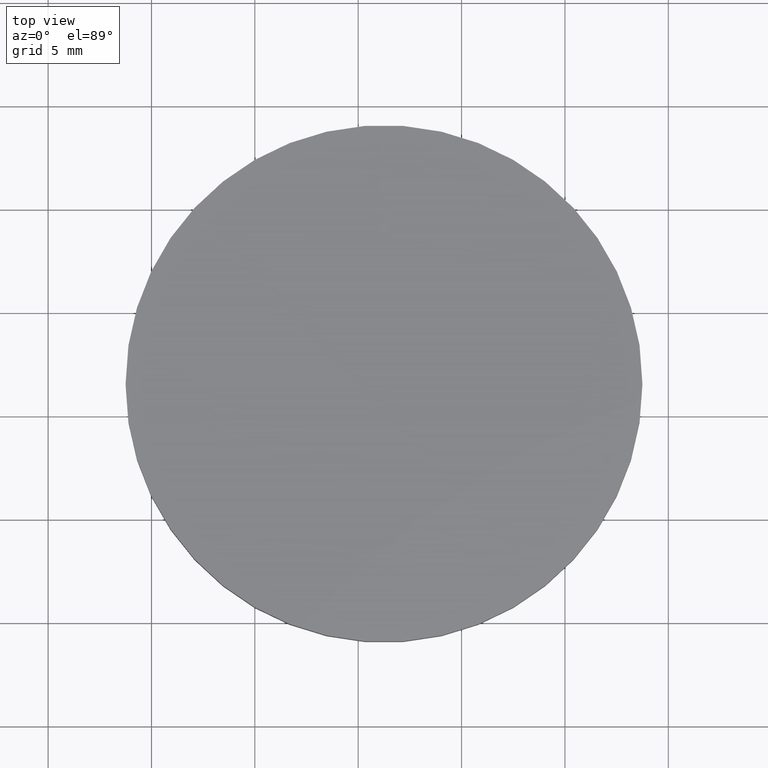
[diagram: clean part render]
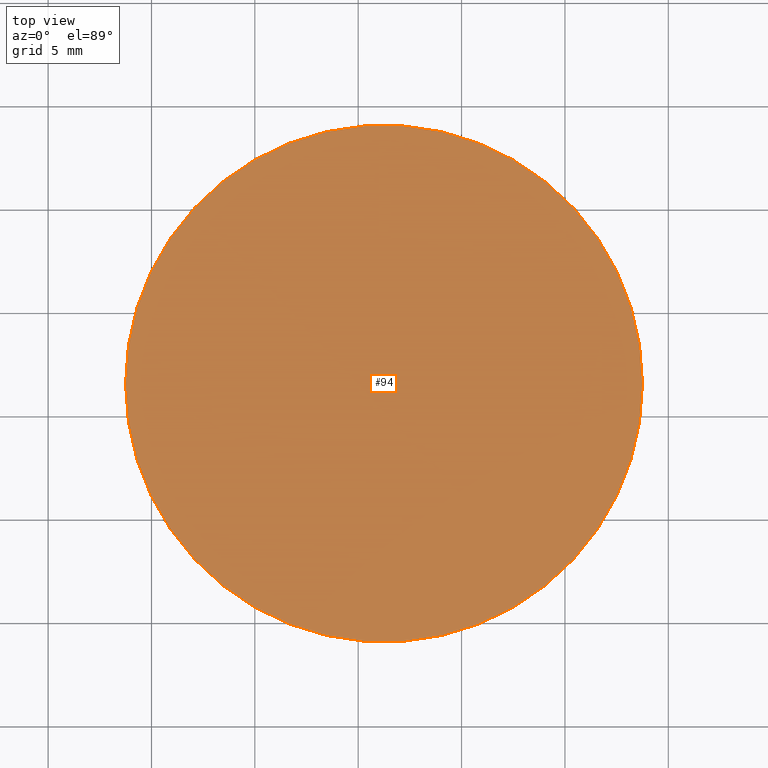
[diagram: same view with one face highlighted and labeled with its STEP entity id]
A machine part, top view. The second image highlights one B-rep face of the part: STEP entity #94.
In plain terms, the highlighted planar face has unit normal (0, 0, 1).
Its self-contained STEP definition (entity closure, byte-faithful):
#8 = DIRECTION ( 'NONE',  ( 1.000000000000000000, 0.0000000000000000000, -0.0000000000000000000 ) ) ;
#10 = VERTEX_POINT ( 'NONE', #11 ) ;
#11 = CARTESIAN_POINT ( 'NONE',  ( 113.7479357758850800, 61.56324183452659300, 2.299999999999999800 ) ) ;
#15 = AXIS2_PLACEMENT_3D ( 'NONE', #67, #85, #8 ) ;
#25 = ORIENTED_EDGE ( 'NONE', *, *, #116, .T. ) ;
#30 = AXIS2_PLACEMENT_3D ( 'NONE', #120, #89, #87 ) ;
#31 = ORIENTED_EDGE ( 'NONE', *, *, #42, .T. ) ;
#42 = EDGE_CURVE ( 'NONE', #10, #48, #81, .T. ) ;
#46 = EDGE_LOOP ( 'NONE', ( #25, #31 ) ) ;
#48 = VERTEX_POINT ( 'NONE', #117 ) ;
#57 = PLANE ( 'NONE',  #15 ) ;
#67 = CARTESIAN_POINT ( 'NONE',  ( 101.2479357758850800, 61.56324183452659300, 2.299999999999999800 ) ) ;
#75 = CIRCLE ( 'NONE', #30, 12.49999999999999600 ) ;
#78 = AXIS2_PLACEMENT_3D ( 'NONE', #137, #129, #140 ) ;
#81 = CIRCLE ( 'NONE', #78, 12.49999999999999600 ) ;
#85 = DIRECTION ( 'NONE',  ( 0.0000000000000000000, 0.0000000000000000000, 1.000000000000000000 ) ) ;
#87 = DIRECTION ( 'NONE',  ( 1.000000000000000000, 0.0000000000000000000, 0.0000000000000000000 ) ) ;
#89 = DIRECTION ( 'NONE',  ( 0.0000000000000000000, 0.0000000000000000000, 1.000000000000000000 ) ) ;
#94 = ADVANCED_FACE ( 'NONE', ( #133 ), #57, .T. ) ;
#116 = EDGE_CURVE ( 'NONE', #48, #10, #75, .T. ) ;
#117 = CARTESIAN_POINT ( 'NONE',  ( 88.74793577588509700, 61.56324183452659300, 2.299999999999999800 ) ) ;
#120 = CARTESIAN_POINT ( 'NONE',  ( 101.2479357758850800, 61.56324183452659300, 2.299999999999999800 ) ) ;
#129 = DIRECTION ( 'NONE',  ( 0.0000000000000000000, 0.0000000000000000000, 1.000000000000000000 ) ) ;
#133 = FACE_OUTER_BOUND ( 'NONE', #46, .T. ) ;
#137 = CARTESIAN_POINT ( 'NONE',  ( 101.2479357758850800, 61.56324183452659300, 2.299999999999999800 ) ) ;
#140 = DIRECTION ( 'NONE',  ( 1.000000000000000000, 0.0000000000000000000, 0.0000000000000000000 ) ) ;